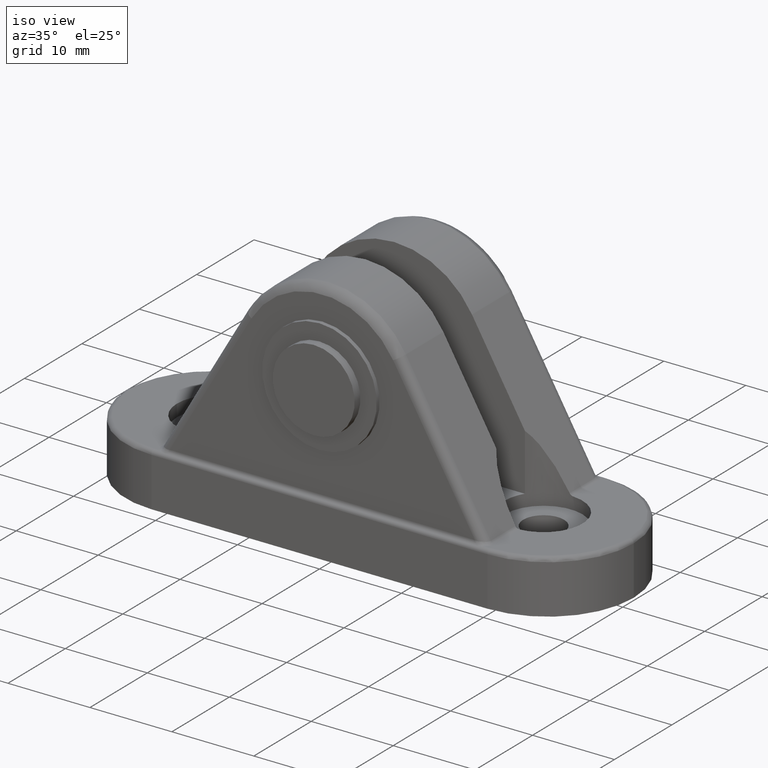
[diagram: clean part render]
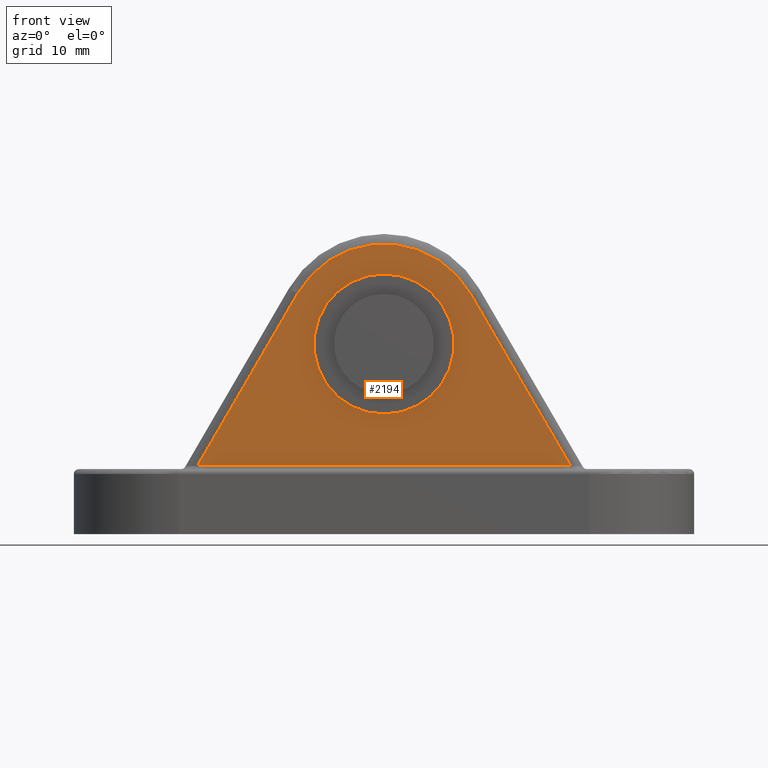
[diagram: tour spotlight — one face highlighted and labeled with its STEP entity id]
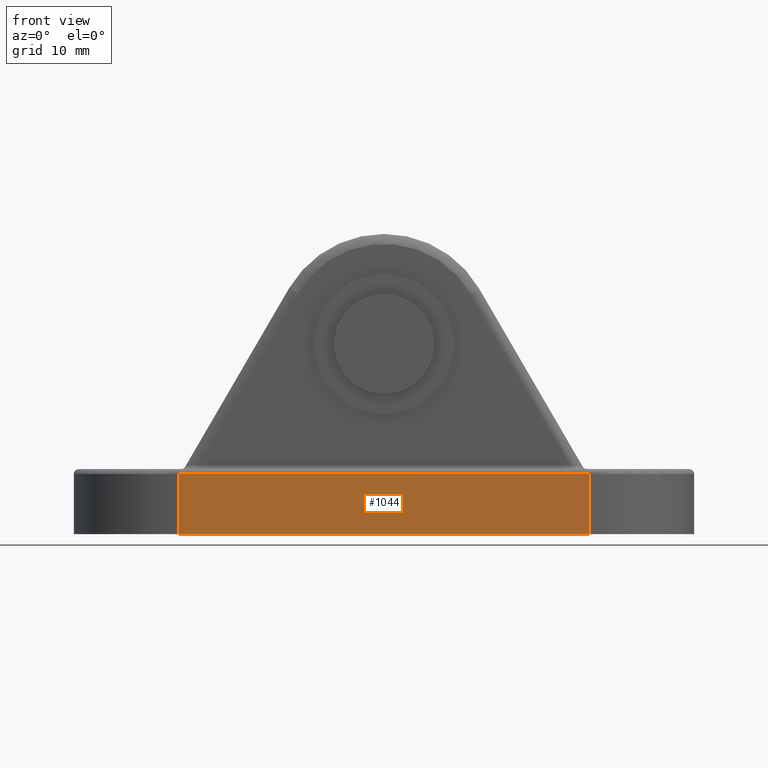
[diagram: tour spotlight — one face highlighted and labeled with its STEP entity id]
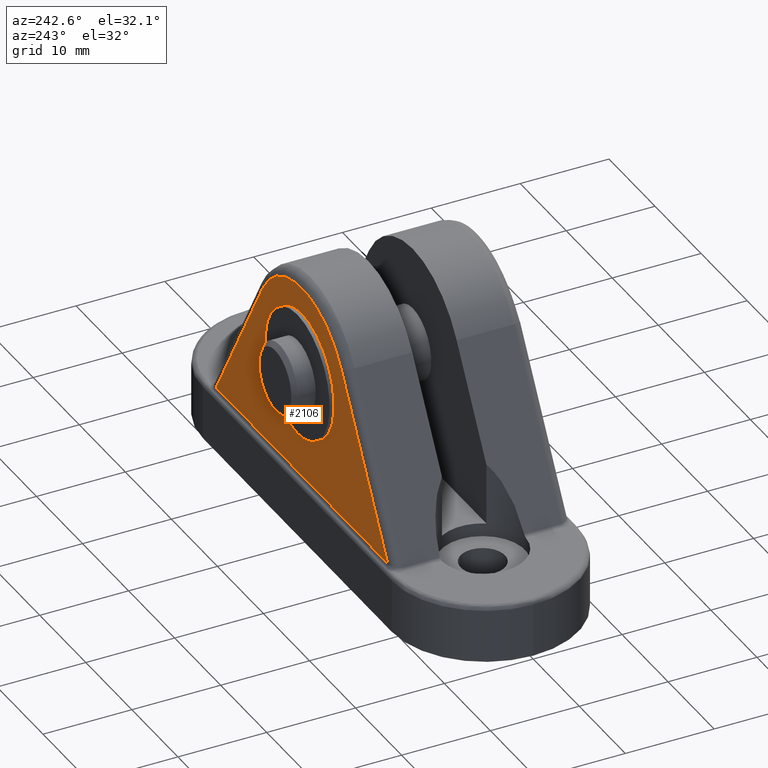
[diagram: tour spotlight — one face highlighted and labeled with its STEP entity id]
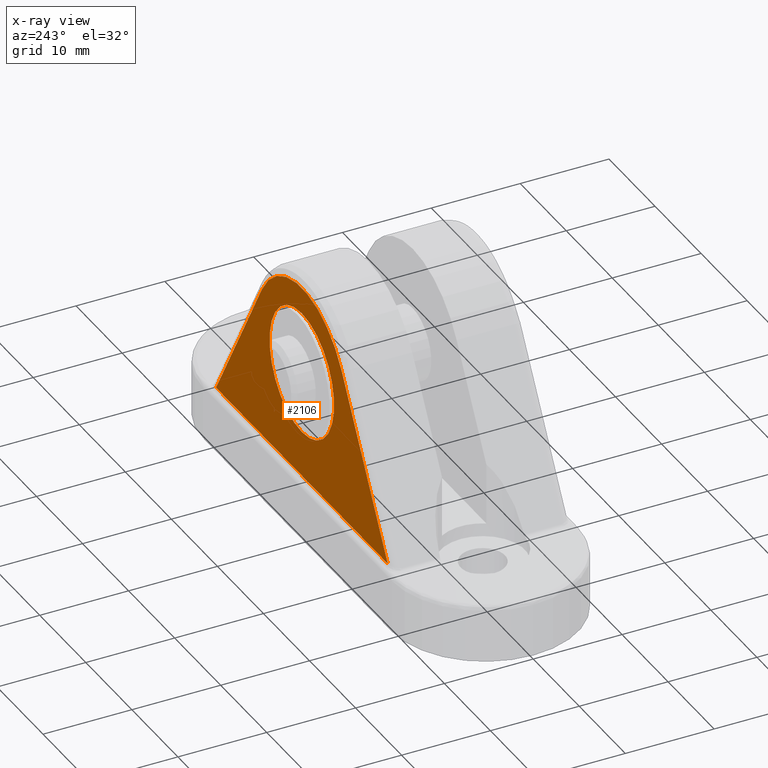
[diagram: x-ray of the same camera — body ghosted, this tour face saturated]
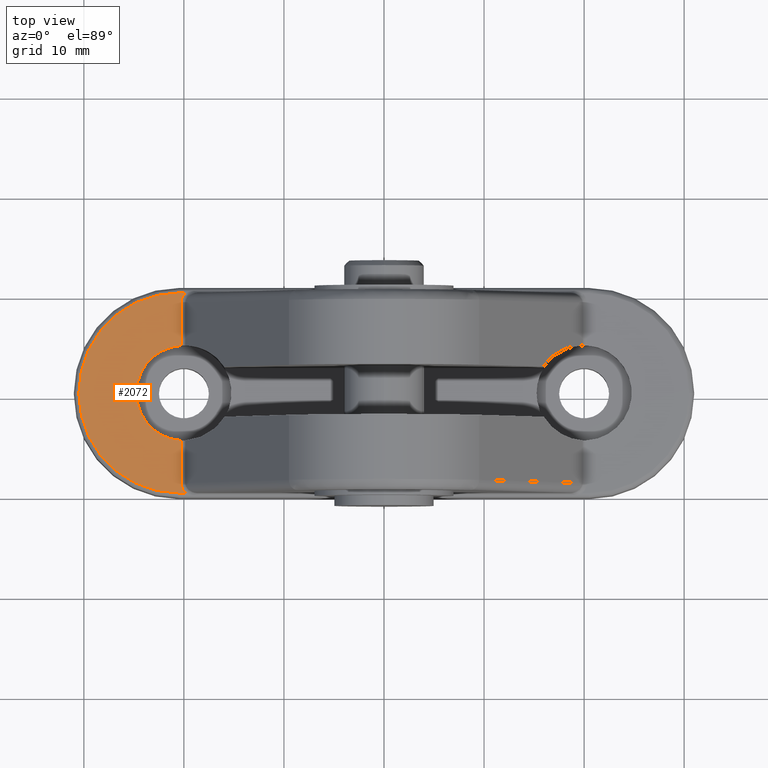
[diagram: tour spotlight — one face highlighted and labeled with its STEP entity id]
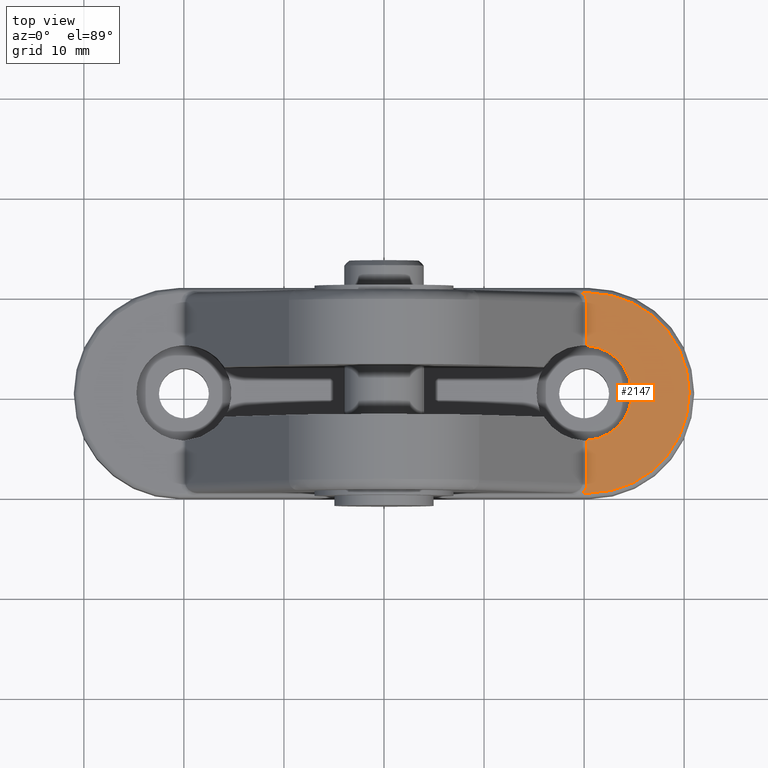
[diagram: tour spotlight — one face highlighted and labeled with its STEP entity id]
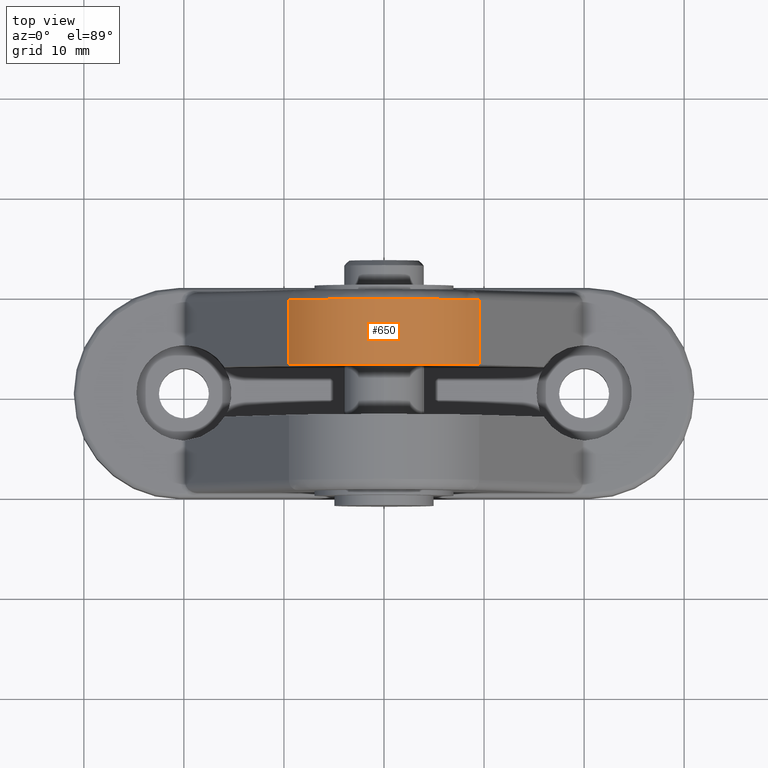
[diagram: tour spotlight — one face highlighted and labeled with its STEP entity id]
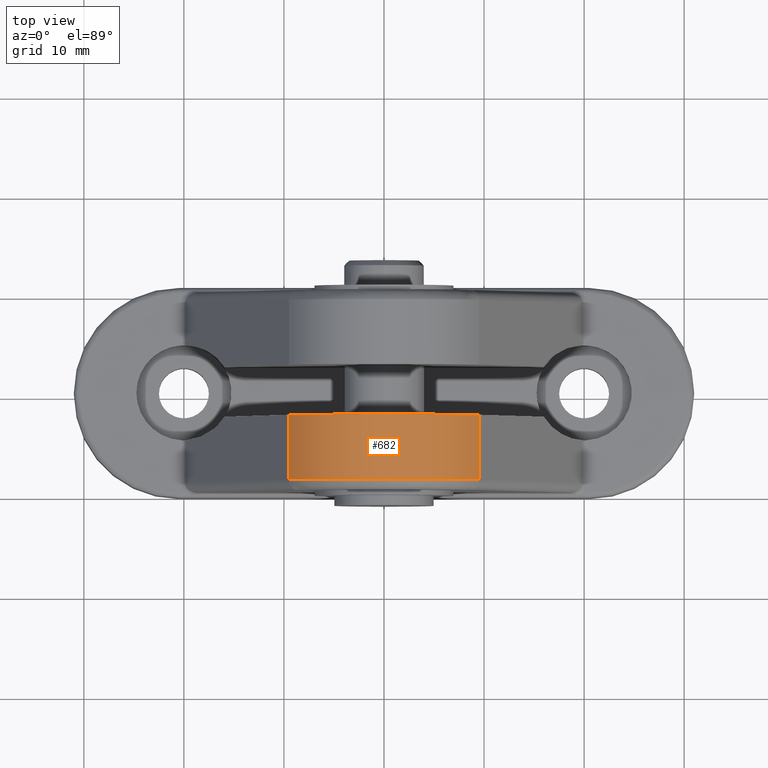
[diagram: tour spotlight — one face highlighted and labeled with its STEP entity id]
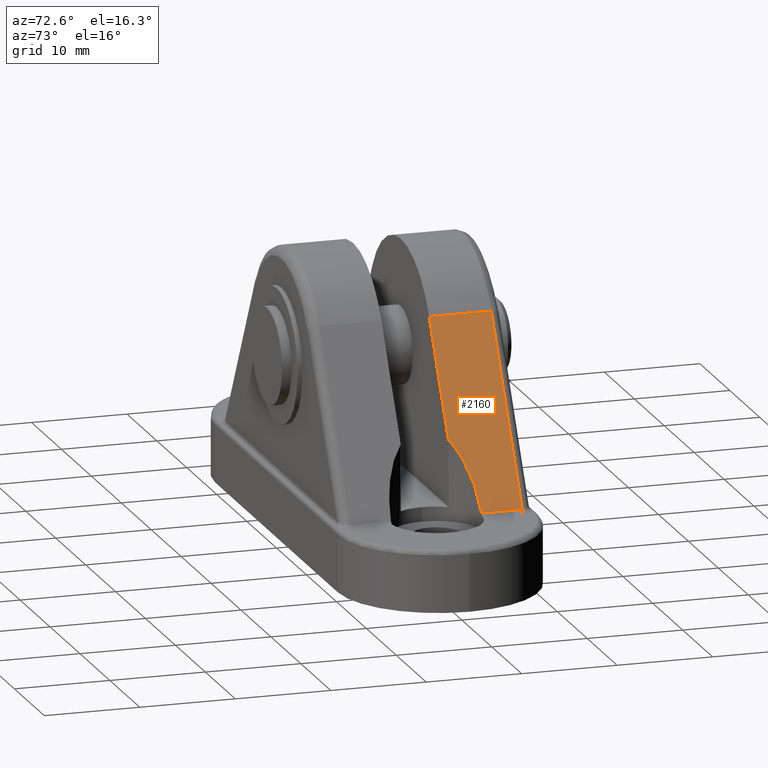
[diagram: tour spotlight — one face highlighted and labeled with its STEP entity id]
A machine part: a face-by-face anatomy tour. The part has 64 B-rep faces; the first image is the clean iso view, then the 8 largest visible faces are spotlighted one at a time (largest first), each with its STEP entity span.

Face 1 — front view, entity #2194. In plain terms, the highlighted planar face has unit normal (0, -1, 0).
Definition (entity closure, byte-faithful):
#374=CARTESIAN_POINT('',(2.131628E-014,0.500000000000000,26.0));
#375=VERTEX_POINT('',#374);
#382=CARTESIAN_POINT('',(-8.185644E-015,0.500000000000000,12.0));
#383=VERTEX_POINT('',#382);
#384=CARTESIAN_POINT('',(7.105427E-015,0.500000000000000,19.0));
#385=DIRECTION('',(0.0,-1.0,6.123234E-017));
#386=DIRECTION('',(2.184439E-015,6.123234E-017,1.0));
#387=AXIS2_PLACEMENT_3D('',#384,#385,#386);
#388=CIRCLE('',#387,7.0);
#389=EDGE_CURVE('',#375,#383,#388,.T.);
#391=CARTESIAN_POINT('',(7.105427E-015,0.500000000000000,19.0));
#392=DIRECTION('',(0.0,-1.0,6.123234E-017));
#393=DIRECTION('',(2.184439E-015,6.123234E-017,1.0));
#394=AXIS2_PLACEMENT_3D('',#391,#392,#393);
#395=CIRCLE('',#394,7.0);
#396=EDGE_CURVE('',#383,#375,#395,.T.);
#762=CARTESIAN_POINT('',(-8.643291246073048,0.500000000000000,24.029265993716876));
#763=VERTEX_POINT('',#762);
#771=CARTESIAN_POINT('',(8.643291246073051,0.500000000000000,24.029265993716884));
#772=VERTEX_POINT('',#771);
#773=CARTESIAN_POINT('',(3.552714E-015,0.500000000000000,19.0));
#774=DIRECTION('',(-3.081488E-033,1.0,-6.123234E-017));
#775=DIRECTION('',(0.864329124607305,3.079537E-017,0.502926599371688));
#776=AXIS2_PLACEMENT_3D('',#773,#774,#775);
#777=CIRCLE('',#776,10.000000000000005);
#778=EDGE_CURVE('',#763,#772,#777,.T.);
#1696=CARTESIAN_POINT('',(-18.630054364826634,0.500000000000000,6.866025403784477));
#1697=VERTEX_POINT('',#1696);
#1707=CARTESIAN_POINT('',(-18.630054364826655,0.500000000000000,6.866025403784490));
#1708=DIRECTION('',(0.502926599371688,5.591008E-017,0.864329124607305));
#1709=VECTOR('',#1708,19.857297528566168);
#1710=LINE('',#1707,#1709);
#1711=EDGE_CURVE('',#1697,#763,#1710,.T.);
#1723=CARTESIAN_POINT('',(18.630054364826695,0.500000000000000,6.866025403784420));
#1724=VERTEX_POINT('',#1723);
#1725=CARTESIAN_POINT('',(18.630054364826695,0.500000000000000,6.866025403784420));
#1726=DIRECTION('',(-0.502926599371688,5.591008E-017,0.864329124607305));
#1727=VECTOR('',#1726,19.857297528566249);
#1728=LINE('',#1725,#1727);
#1729=EDGE_CURVE('',#1724,#772,#1728,.T.);
#2174=CARTESIAN_POINT('',(31.000000000000014,0.500000000000000,6.499999999999972));
#2175=DIRECTION('',(0.0,-1.0,0.0));
#2176=DIRECTION('',(0.0,0.0,1.0));
#2177=AXIS2_PLACEMENT_3D('',#2174,#2175,#2176);
#2178=PLANE('',#2177);
#2179=ORIENTED_EDGE('',*,*,#778,.F.);
#2180=ORIENTED_EDGE('',*,*,#1711,.F.);
#2181=CARTESIAN_POINT('',(18.630054364826695,0.500000000000000,6.866025403784420));
#2182=DIRECTION('',(-1.0,0.0,0.0));
#2183=VECTOR('',#2182,37.260108729653325);
#2184=LINE('',#2181,#2183);
#2185=EDGE_CURVE('',#1724,#1697,#2184,.T.);
#2186=ORIENTED_EDGE('',*,*,#2185,.F.);
#2187=ORIENTED_EDGE('',*,*,#1729,.T.);
#2188=EDGE_LOOP('',(#2179,#2180,#2186,#2187));
#2189=FACE_OUTER_BOUND('',#2188,.T.);
#2190=ORIENTED_EDGE('',*,*,#396,.F.);
#2191=ORIENTED_EDGE('',*,*,#389,.F.);
#2192=EDGE_LOOP('',(#2190,#2191));
#2193=FACE_BOUND('',#2192,.T.);
#2194=ADVANCED_FACE('',(#2189,#2193),#2178,.T.);

Face 2 — front view, entity #1044. In plain terms, the highlighted planar face has unit normal (0, -1, 0).
Definition (entity closure, byte-faithful):
#84=CARTESIAN_POINT('',(-20.500000000000000,0.0,0.0));
#85=VERTEX_POINT('',#84);
#121=CARTESIAN_POINT('',(20.500000000000000,0.0,0.0));
#122=VERTEX_POINT('',#121);
#130=CARTESIAN_POINT('',(-20.500000000000000,0.0,0.0));
#131=DIRECTION('',(1.0,0.0,0.0));
#132=VECTOR('',#131,41.0);
#133=LINE('',#130,#132);
#134=EDGE_CURVE('',#85,#122,#133,.T.);
#902=CARTESIAN_POINT('',(-20.500000000000000,0.0,6.000000000000043));
#903=VERTEX_POINT('',#902);
#904=CARTESIAN_POINT('',(-20.500000000000000,-3.061617E-017,6.000000000000043));
#905=DIRECTION('',(0.0,0.0,-1.0));
#906=VECTOR('',#905,6.000000000000043);
#907=LINE('',#904,#906);
#908=EDGE_CURVE('',#903,#85,#907,.T.);
#1010=CARTESIAN_POINT('',(20.500000000000014,0.0,5.999999999999986));
#1011=VERTEX_POINT('',#1010);
#1019=CARTESIAN_POINT('',(20.500000000000000,0.0,0.0));
#1020=DIRECTION('',(0.0,0.0,1.0));
#1021=VECTOR('',#1020,5.999999999999986);
#1022=LINE('',#1019,#1021);
#1023=EDGE_CURVE('',#122,#1011,#1022,.T.);
#1028=CARTESIAN_POINT('',(-37.200001918771463,0.0,-3.000001865087839));
#1029=DIRECTION('',(0.0,-1.0,0.0));
#1030=DIRECTION('',(1.0,0.0,0.0));
#1031=AXIS2_PLACEMENT_3D('',#1028,#1029,#1030);
#1032=PLANE('',#1031);
#1033=ORIENTED_EDGE('',*,*,#134,.T.);
#1034=ORIENTED_EDGE('',*,*,#1023,.T.);
#1035=CARTESIAN_POINT('',(20.500000000000014,0.0,5.999999999999986));
#1036=DIRECTION('',(-1.0,0.0,0.0));
#1037=VECTOR('',#1036,41.000000000000014);
#1038=LINE('',#1035,#1037);
#1039=EDGE_CURVE('',#1011,#903,#1038,.T.);
#1040=ORIENTED_EDGE('',*,*,#1039,.T.);
#1041=ORIENTED_EDGE('',*,*,#908,.T.);
#1042=EDGE_LOOP('',(#1033,#1034,#1040,#1041));
#1043=FACE_OUTER_BOUND('',#1042,.T.);
#1044=ADVANCED_FACE('',(#1043),#1032,.T.);

Face 3 — auxiliary view, entity #2106. An x-ray twin of the same camera follows (body ghosted, this face saturated) — the face is partly hidden behind the body. In plain terms, the highlighted planar face has unit normal (0, 1, 0).
Definition (entity closure, byte-faithful):
#474=CARTESIAN_POINT('',(-7.105427E-015,20.499999999999996,12.0));
#475=VERTEX_POINT('',#474);
#482=CARTESIAN_POINT('',(2.239650E-014,20.500000000000000,26.0));
#483=VERTEX_POINT('',#482);
#484=CARTESIAN_POINT('',(7.105427E-015,20.500000000000000,19.0));
#485=DIRECTION('',(0.0,1.0,-6.123234E-017));
#486=DIRECTION('',(-2.184439E-015,-6.123234E-017,-1.0));
#487=AXIS2_PLACEMENT_3D('',#484,#485,#486);
#488=CIRCLE('',#487,7.0);
#489=EDGE_CURVE('',#475,#483,#488,.T.);
#491=CARTESIAN_POINT('',(7.105427E-015,20.500000000000000,19.0));
#492=DIRECTION('',(0.0,1.0,-6.123234E-017));
#493=DIRECTION('',(-2.184439E-015,-6.123234E-017,-1.0));
#494=AXIS2_PLACEMENT_3D('',#491,#492,#493);
#495=CIRCLE('',#494,7.0);
#496=EDGE_CURVE('',#483,#475,#495,.T.);
#868=CARTESIAN_POINT('',(8.643291246073051,20.500000000000000,24.029265993716884));
#869=VERTEX_POINT('',#868);
#877=CARTESIAN_POINT('',(-8.643291246073055,20.500000000000000,24.029265993716876));
#878=VERTEX_POINT('',#877);
#879=CARTESIAN_POINT('',(-6.317050E-032,20.500000000000000,19.0));
#880=DIRECTION('',(3.081488E-033,-1.0,6.123234E-017));
#881=DIRECTION('',(0.864329124607305,3.079537E-017,0.502926599371688));
#882=AXIS2_PLACEMENT_3D('',#879,#880,#881);
#883=CIRCLE('',#882,10.000000000000005);
#884=EDGE_CURVE('',#869,#878,#883,.T.);
#1519=CARTESIAN_POINT('',(-18.630054364826655,20.499999999999996,6.866025403784477));
#1520=VERTEX_POINT('',#1519);
#1521=CARTESIAN_POINT('',(-18.630054364826663,20.499999999999996,6.866025403784481));
#1522=DIRECTION('',(0.502926599371688,0.0,0.864329124607305));
#1523=VECTOR('',#1522,19.857297528566178);
#1524=LINE('',#1521,#1523);
#1525=EDGE_CURVE('',#1520,#878,#1524,.T.);
#1590=CARTESIAN_POINT('',(18.630054364826698,20.499999999999996,6.866025403784434));
#1591=VERTEX_POINT('',#1590);
#1602=CARTESIAN_POINT('',(18.630054364826687,20.499999999999996,6.866025403784429));
#1603=DIRECTION('',(-0.502926599371688,0.0,0.864329124607305));
#1604=VECTOR('',#1603,19.857297528566242);
#1605=LINE('',#1602,#1604);
#1606=EDGE_CURVE('',#1591,#869,#1605,.T.);
#2086=CARTESIAN_POINT('',(31.000000000000096,20.500000000000000,43.499999999999879));
#2087=DIRECTION('',(0.0,1.0,0.0));
#2088=DIRECTION('',(0.0,0.0,-1.0));
#2089=AXIS2_PLACEMENT_3D('',#2086,#2087,#2088);
#2090=PLANE('',#2089);
#2091=ORIENTED_EDGE('',*,*,#1606,.F.);
#2092=CARTESIAN_POINT('',(18.630054364826698,20.499999999999996,6.866025403784434));
#2093=DIRECTION('',(-1.0,0.0,0.0));
#2094=VECTOR('',#2093,37.260108729653354);
#2095=LINE('',#2092,#2094);
#2096=EDGE_CURVE('',#1591,#1520,#2095,.T.);
#2097=ORIENTED_EDGE('',*,*,#2096,.T.);
#2098=ORIENTED_EDGE('',*,*,#1525,.T.);
#2099=ORIENTED_EDGE('',*,*,#884,.F.);
#2100=EDGE_LOOP('',(#2091,#2097,#2098,#2099));
#2101=FACE_OUTER_BOUND('',#2100,.T.);
#2102=ORIENTED_EDGE('',*,*,#496,.F.);
#2103=ORIENTED_EDGE('',*,*,#489,.F.);
#2104=EDGE_LOOP('',(#2102,#2103));
#2105=FACE_BOUND('',#2104,.T.);
#2106=ADVANCED_FACE('',(#2101,#2105),#2090,.T.);

Face 4 — top view, entity #2072. In plain terms, the highlighted planar face has unit normal (0, 0, 1).
Definition (entity closure, byte-faithful):
#1330=CARTESIAN_POINT('',(-30.500000000000000,10.500000000000000,6.500000000000057));
#1331=VERTEX_POINT('',#1330);
#1339=CARTESIAN_POINT('',(-20.500000000000000,20.500000000000000,6.500000000000043));
#1340=VERTEX_POINT('',#1339);
#1341=CARTESIAN_POINT('',(-20.500000000000000,10.500000000000000,6.500000000000043));
#1342=DIRECTION('',(1.336409E-015,6.123234E-017,1.0));
#1343=DIRECTION('',(0.0,1.0,-6.123234E-017));
#1344=AXIS2_PLACEMENT_3D('',#1341,#1342,#1343);
#1345=CIRCLE('',#1344,10.0);
#1346=EDGE_CURVE('',#1340,#1331,#1345,.T.);
#1436=CARTESIAN_POINT('',(-20.500000000000000,0.500000000000000,6.500000000000043));
#1437=VERTEX_POINT('',#1436);
#1445=CARTESIAN_POINT('',(-20.500000000000000,10.500000000000000,6.500000000000043));
#1446=DIRECTION('',(-1.336409E-015,-6.123234E-017,-1.0));
#1447=DIRECTION('',(0.0,-1.0,6.123234E-017));
#1448=AXIS2_PLACEMENT_3D('',#1445,#1446,#1447);
#1449=CIRCLE('',#1448,10.0);
#1450=EDGE_CURVE('',#1437,#1331,#1449,.T.);
#1464=CARTESIAN_POINT('',(-19.845626732760415,20.500000000000000,6.500000000000043));
#1465=VERTEX_POINT('',#1464);
#1466=CARTESIAN_POINT('',(-20.500000000000000,20.500000000000000,6.500000000000043));
#1467=DIRECTION('',(1.0,0.0,0.0));
#1468=VECTOR('',#1467,0.654373267239585);
#1469=LINE('',#1466,#1468);
#1470=EDGE_CURVE('',#1340,#1465,#1469,.T.);
#1646=CARTESIAN_POINT('',(-19.845626732760408,0.500000000000004,6.500000000000043));
#1647=VERTEX_POINT('',#1646);
#1657=CARTESIAN_POINT('',(-19.845626732760408,0.500000000000000,6.500000000000042));
#1658=DIRECTION('',(-1.0,0.0,0.0));
#1659=VECTOR('',#1658,0.654373267239592);
#1660=LINE('',#1657,#1659);
#1661=EDGE_CURVE('',#1647,#1437,#1660,.T.);
#1774=CARTESIAN_POINT('',(-24.750000000000000,10.499999999999988,6.500000000000057));
#1775=VERTEX_POINT('',#1774);
#1782=CARTESIAN_POINT('',(-20.287548681674998,5.758711593283206,6.500000000000043));
#1783=VERTEX_POINT('',#1782);
#1784=CARTESIAN_POINT('',(-20.0,10.499999999999988,6.500000000000057));
#1785=DIRECTION('',(1.336409E-015,6.123234E-017,1.0));
#1786=DIRECTION('',(-1.0,8.183146E-032,1.336409E-015));
#1787=AXIS2_PLACEMENT_3D('',#1784,#1785,#1786);
#1788=CIRCLE('',#1787,4.750000000000000);
#1789=EDGE_CURVE('',#1775,#1783,#1788,.T.);
#1821=CARTESIAN_POINT('',(-20.287548681674998,15.241288406716770,6.500000000000043));
#1822=VERTEX_POINT('',#1821);
#1832=CARTESIAN_POINT('',(-20.0,10.499999999999988,6.500000000000057));
#1833=DIRECTION('',(1.336409E-015,6.123234E-017,1.0));
#1834=DIRECTION('',(-1.0,8.183146E-032,1.336409E-015));
#1835=AXIS2_PLACEMENT_3D('',#1832,#1833,#1834);
#1836=CIRCLE('',#1835,4.750000000000000);
#1837=EDGE_CURVE('',#1822,#1775,#1836,.T.);
#1848=CARTESIAN_POINT('',(-20.287548681675005,19.499999999999996,6.500000000000043));
#1849=VERTEX_POINT('',#1848);
#1857=CARTESIAN_POINT('',(-20.287548681674998,19.499999999999996,6.500000000000043));
#1858=DIRECTION('',(0.0,-1.0,0.0));
#1859=VECTOR('',#1858,4.258711593283227);
#1860=LINE('',#1857,#1859);
#1861=EDGE_CURVE('',#1849,#1822,#1860,.T.);
#1983=CARTESIAN_POINT('',(-20.287548681675005,1.500000000000000,6.500000000000043));
#1984=VERTEX_POINT('',#1983);
#1985=CARTESIAN_POINT('',(-20.287548681674998,5.758711593283206,6.500000000000043));
#1986=DIRECTION('',(0.0,-1.0,0.0));
#1987=VECTOR('',#1986,4.258711593283206);
#1988=LINE('',#1985,#1987);
#1989=EDGE_CURVE('',#1783,#1984,#1988,.T.);
#2031=CARTESIAN_POINT('',(31.000017670767889,21.000017670767875,6.499999999999972));
#2032=DIRECTION('',(0.0,0.0,1.0));
#2033=DIRECTION('',(-1.0,0.0,0.0));
#2034=AXIS2_PLACEMENT_3D('',#2031,#2032,#2033);
#2035=PLANE('',#2034);
#2036=ORIENTED_EDGE('',*,*,#1346,.T.);
#2037=ORIENTED_EDGE('',*,*,#1450,.F.);
#2038=ORIENTED_EDGE('',*,*,#1661,.F.);
#2039=CARTESIAN_POINT('',(-20.287548681675005,1.500000000000000,6.500000000000043));
#2040=CARTESIAN_POINT('',(-20.287548681675005,1.447876595983789,6.500000000000043));
#2041=CARTESIAN_POINT('',(-20.281256378258270,1.343629906590522,6.500000000000057));
#2042=CARTESIAN_POINT('',(-20.253043491302066,1.188957574706969,6.500000000000043));
#2043=CARTESIAN_POINT('',(-20.206362496084381,1.037662430134187,6.500000000000043));
#2044=CARTESIAN_POINT('',(-20.141720232465069,0.891387134738501,6.500000000000043));
#2045=CARTESIAN_POINT('',(-20.059818564309857,0.751719896273503,6.500000000000028));
#2046=CARTESIAN_POINT('',(-19.961546718858784,0.620177133573165,6.500000000000043));
#2047=CARTESIAN_POINT('',(-19.885830093981859,0.538850491532980,6.500000000000043));
#2048=CARTESIAN_POINT('',(-19.845626732760408,0.500000000000000,6.500000000000043));
#2049=B_SPLINE_CURVE_WITH_KNOTS('',3,(#2039,#2040,#2041,#2042,#2043,#2044,#2045,#2046,#2047,#2048),.UNSPECIFIED.,.F.,.U.,(4,1,1,1,1,1,1,4),(-4.836507031854392,-4.676018236618296,-4.515529441382200,-4.355040646146104,-4.194551850910007,-4.034063055673911,-3.873574260437814,-3.713085465201718),.UNSPECIFIED.);
#2050=EDGE_CURVE('',#1984,#1647,#2049,.T.);
#2051=ORIENTED_EDGE('',*,*,#2050,.F.);
#2052=ORIENTED_EDGE('',*,*,#1989,.F.);
#2053=ORIENTED_EDGE('',*,*,#1789,.F.);
#2054=ORIENTED_EDGE('',*,*,#1837,.F.);
#2055=ORIENTED_EDGE('',*,*,#1861,.F.);
#2056=CARTESIAN_POINT('',(-20.287548681675005,19.499999999999996,6.500000000000043));
#2057=CARTESIAN_POINT('',(-20.287548681675005,19.552123404016211,6.500000000000043));
#2058=CARTESIAN_POINT('',(-20.281256378258277,19.656370093409489,6.500000000000057));
#2059=CARTESIAN_POINT('',(-20.253043491302080,19.811042425293028,6.500000000000014));
#2060=CARTESIAN_POINT('',(-20.206362496084367,19.962337569865809,6.500000000000057));
#2061=CARTESIAN_POINT('',(-20.141720232465069,20.108612865261499,6.500000000000043));
#2062=CARTESIAN_POINT('',(-20.059818564309857,20.248280103726490,6.500000000000028));
#2063=CARTESIAN_POINT('',(-19.961546718858806,20.379822866426839,6.500000000000043));
#2064=CARTESIAN_POINT('',(-19.885830093981859,20.461149508467020,6.500000000000043));
#2065=CARTESIAN_POINT('',(-19.845626732760408,20.500000000000000,6.500000000000043));
#2066=B_SPLINE_CURVE_WITH_KNOTS('',3,(#2056,#2057,#2058,#2059,#2060,#2061,#2062,#2063,#2064,#2065),.UNSPECIFIED.,.F.,.U.,(4,1,1,1,1,1,1,4),(-4.836507031854445,-4.676018236618347,-4.515529441382249,-4.355040646146151,-4.194551850910053,-4.034063055673955,-3.873574260437856,-3.713085465201758),.UNSPECIFIED.);
#2067=EDGE_CURVE('',#1849,#1465,#2066,.T.);
#2068=ORIENTED_EDGE('',*,*,#2067,.T.);
#2069=ORIENTED_EDGE('',*,*,#1470,.F.);
#2070=EDGE_LOOP('',(#2036,#2037,#2038,#2051,#2052,#2053,#2054,#2055,#2068,#2069));
#2071=FACE_OUTER_BOUND('',#2070,.T.);
#2072=ADVANCED_FACE('',(#2071),#2035,.T.);

Face 5 — top view, entity #2147. In plain terms, the highlighted planar face has unit normal (0, 0, 1).
Definition (entity closure, byte-faithful):
#1124=CARTESIAN_POINT('',(30.500000000000014,10.500000000000000,6.499999999999972));
#1125=VERTEX_POINT('',#1124);
#1133=CARTESIAN_POINT('',(20.500000000000014,0.500000000000000,6.499999999999986));
#1134=VERTEX_POINT('',#1133);
#1135=CARTESIAN_POINT('',(20.500000000000014,10.500000000000000,6.499999999999986));
#1136=DIRECTION('',(1.336409E-015,6.123234E-017,1.0));
#1137=DIRECTION('',(0.0,-1.0,6.123234E-017));
#1138=AXIS2_PLACEMENT_3D('',#1135,#1136,#1137);
#1139=CIRCLE('',#1138,10.0);
#1140=EDGE_CURVE('',#1134,#1125,#1139,.T.);
#1231=CARTESIAN_POINT('',(20.500000000000014,20.500000000000000,6.499999999999986));
#1232=VERTEX_POINT('',#1231);
#1240=CARTESIAN_POINT('',(20.500000000000014,10.500000000000000,6.499999999999986));
#1241=DIRECTION('',(-1.336409E-015,-6.123234E-017,-1.0));
#1242=DIRECTION('',(0.0,1.0,-6.123234E-017));
#1243=AXIS2_PLACEMENT_3D('',#1240,#1241,#1242);
#1244=CIRCLE('',#1243,10.0);
#1245=EDGE_CURVE('',#1232,#1125,#1244,.T.);
#1491=CARTESIAN_POINT('',(19.845626732760440,20.500000000000000,6.499999999999986));
#1492=VERTEX_POINT('',#1491);
#1503=CARTESIAN_POINT('',(19.845626732760437,20.500000000000000,6.499999999999987));
#1504=DIRECTION('',(1.0,0.0,0.0));
#1505=VECTOR('',#1504,0.654373267239578);
#1506=LINE('',#1503,#1505);
#1507=EDGE_CURVE('',#1492,#1232,#1506,.T.);
#1618=CARTESIAN_POINT('',(19.845626732760444,0.500000000000000,6.499999999999986));
#1619=VERTEX_POINT('',#1618);
#1620=CARTESIAN_POINT('',(20.500000000000014,0.500000000000000,6.499999999999986));
#1621=DIRECTION('',(-1.0,0.0,0.0));
#1622=VECTOR('',#1621,0.654373267239571);
#1623=LINE('',#1620,#1622);
#1624=EDGE_CURVE('',#1134,#1619,#1623,.T.);
#1897=CARTESIAN_POINT('',(20.287548681675034,5.758711593283209,6.499999999999986));
#1898=VERTEX_POINT('',#1897);
#1908=CARTESIAN_POINT('',(20.287548681675034,15.241288406716771,6.499999999999986));
#1909=VERTEX_POINT('',#1908);
#1910=CARTESIAN_POINT('',(20.0,10.499999999999991,6.499999999999986));
#1911=DIRECTION('',(1.336409E-015,6.123234E-017,1.0));
#1912=DIRECTION('',(-1.0,8.183146E-032,1.336409E-015));
#1913=AXIS2_PLACEMENT_3D('',#1910,#1911,#1912);
#1914=CIRCLE('',#1913,4.750000000000000);
#1915=EDGE_CURVE('',#1898,#1909,#1914,.T.);
#1953=CARTESIAN_POINT('',(20.287548681675041,19.500000000000000,6.499999999999986));
#1954=VERTEX_POINT('',#1953);
#1955=CARTESIAN_POINT('',(20.287548681675041,19.500000000000000,6.499999999999986));
#1956=DIRECTION('',(0.0,-1.0,0.0));
#1957=VECTOR('',#1956,4.258711593283227);
#1958=LINE('',#1955,#1957);
#1959=EDGE_CURVE('',#1954,#1909,#1958,.T.);
#2012=CARTESIAN_POINT('',(20.287548681675041,1.500000000000000,6.499999999999986));
#2013=VERTEX_POINT('',#2012);
#2021=CARTESIAN_POINT('',(20.287548681675034,5.758711593283209,6.499999999999986));
#2022=DIRECTION('',(0.0,-1.0,0.0));
#2023=VECTOR('',#2022,4.258711593283209);
#2024=LINE('',#2021,#2023);
#2025=EDGE_CURVE('',#1898,#2013,#2024,.T.);
#2107=CARTESIAN_POINT('',(31.000017670767889,21.000017670767875,6.499999999999972));
#2108=DIRECTION('',(0.0,0.0,1.0));
#2109=DIRECTION('',(-1.0,0.0,0.0));
#2110=AXIS2_PLACEMENT_3D('',#2107,#2108,#2109);
#2111=PLANE('',#2110);
#2112=ORIENTED_EDGE('',*,*,#1140,.T.);
#2113=ORIENTED_EDGE('',*,*,#1245,.F.);
#2114=ORIENTED_EDGE('',*,*,#1507,.F.);
#2115=CARTESIAN_POINT('',(20.287548681675037,19.500000000000000,6.499999999999986));
#2116=CARTESIAN_POINT('',(20.287548681675037,19.552123404016214,6.499999999999986));
#2117=CARTESIAN_POINT('',(20.281256378258320,19.656370093409489,6.499999999999986));
#2118=CARTESIAN_POINT('',(20.253043491302090,19.811042425293031,6.499999999999972));
#2119=CARTESIAN_POINT('',(20.206362496084417,19.962337569865809,6.499999999999986));
#2120=CARTESIAN_POINT('',(20.141720232465094,20.108612865261499,6.499999999999986));
#2121=CARTESIAN_POINT('',(20.059818564309879,20.248280103726493,6.499999999999972));
#2122=CARTESIAN_POINT('',(19.961546718858820,20.379822866426839,6.499999999999986));
#2123=CARTESIAN_POINT('',(19.885830093981891,20.461149508467024,6.499999999999986));
#2124=CARTESIAN_POINT('',(19.845626732760440,20.500000000000000,6.499999999999986));
#2125=B_SPLINE_CURVE_WITH_KNOTS('',3,(#2115,#2116,#2117,#2118,#2119,#2120,#2121,#2122,#2123,#2124),.UNSPECIFIED.,.F.,.U.,(4,1,1,1,1,1,1,4),(-4.836507031854457,-4.676018236618360,-4.515529441382262,-4.355040646146165,-4.194551850910067,-4.034063055673970,-3.873574260437873,-3.713085465201775),.UNSPECIFIED.);
#2126=EDGE_CURVE('',#1954,#1492,#2125,.T.);
#2127=ORIENTED_EDGE('',*,*,#2126,.F.);
#2128=ORIENTED_EDGE('',*,*,#1959,.T.);
#2129=ORIENTED_EDGE('',*,*,#1915,.F.);
#2130=ORIENTED_EDGE('',*,*,#2025,.T.);
#2131=CARTESIAN_POINT('',(20.287548681675037,1.500000000000000,6.499999999999986));
#2132=CARTESIAN_POINT('',(20.287548681675037,1.447876595983789,6.499999999999986));
#2133=CARTESIAN_POINT('',(20.281256378258320,1.343629906590504,6.499999999999986));
#2134=CARTESIAN_POINT('',(20.253043491302087,1.188957574706965,6.499999999999986));
#2135=CARTESIAN_POINT('',(20.206362496084417,1.037662430134187,6.499999999999972));
#2136=CARTESIAN_POINT('',(20.141720232465094,0.891387134738498,6.500000000000000));
#2137=CARTESIAN_POINT('',(20.059818564309882,0.751719896273503,6.499999999999986));
#2138=CARTESIAN_POINT('',(19.961546718858820,0.620177133573161,6.499999999999986));
#2139=CARTESIAN_POINT('',(19.885830093981895,0.538850491532980,6.499999999999986));
#2140=CARTESIAN_POINT('',(19.845626732760444,0.500000000000000,6.499999999999986));
#2141=B_SPLINE_CURVE_WITH_KNOTS('',3,(#2131,#2132,#2133,#2134,#2135,#2136,#2137,#2138,#2139,#2140),.UNSPECIFIED.,.F.,.U.,(4,1,1,1,1,1,1,4),(-4.836507031854486,-4.676018236618389,-4.515529441382290,-4.355040646146192,-4.194551850910094,-4.034063055673997,-3.873574260437898,-3.713085465201800),.UNSPECIFIED.);
#2142=EDGE_CURVE('',#2013,#1619,#2141,.T.);
#2143=ORIENTED_EDGE('',*,*,#2142,.T.);
#2144=ORIENTED_EDGE('',*,*,#1624,.F.);
#2145=EDGE_LOOP('',(#2112,#2113,#2114,#2127,#2128,#2129,#2130,#2143,#2144));
#2146=FACE_OUTER_BOUND('',#2145,.T.);
#2147=ADVANCED_FACE('',(#2146),#2111,.T.);

Face 6 — top view, entity #650. In plain terms, the highlighted cylindrical surface (partial cylindrical patch) has radius 11 mm, axis along (0, -1, 0).
Definition (entity closure, byte-faithful):
#554=CARTESIAN_POINT('',(9.507620370680357,12.999999999999996,24.532192593088567));
#555=VERTEX_POINT('',#554);
#562=CARTESIAN_POINT('',(-9.507620370680357,12.999999999999996,24.532192593088567));
#563=VERTEX_POINT('',#562);
#564=CARTESIAN_POINT('',(-8.011869E-032,12.999999999999996,19.0));
#565=DIRECTION('',(6.162976E-033,-1.0,6.123234E-017));
#566=DIRECTION('',(0.864329124607305,3.079537E-017,0.502926599371688));
#567=AXIS2_PLACEMENT_3D('',#564,#565,#566);
#568=CIRCLE('',#567,11.000000000000004);
#569=EDGE_CURVE('',#555,#563,#568,.T.);
#619=CARTESIAN_POINT('',(0.0,21.0,19.0));
#620=DIRECTION('',(6.162976E-033,-1.0,6.123234E-017));
#621=DIRECTION('',(0.864329124607305,3.079537E-017,0.502926599371688));
#622=AXIS2_PLACEMENT_3D('',#619,#620,#621);
#623=CYLINDRICAL_SURFACE('',#622,11.000000000000004);
#624=CARTESIAN_POINT('',(9.507620370680357,19.500000000000000,24.532192593088567));
#625=VERTEX_POINT('',#624);
#626=CARTESIAN_POINT('',(9.507620370680357,19.500000000000000,24.532192593088567));
#627=DIRECTION('',(0.0,-1.0,0.0));
#628=VECTOR('',#627,6.500000000000004);
#629=LINE('',#626,#628);
#630=EDGE_CURVE('',#625,#555,#629,.T.);
#631=ORIENTED_EDGE('',*,*,#630,.F.);
#632=CARTESIAN_POINT('',(-9.507620370680357,19.500000000000000,24.532192593088567));
#633=VERTEX_POINT('',#632);
#634=CARTESIAN_POINT('',(-1.201780E-031,19.500000000000000,19.0));
#635=DIRECTION('',(6.162976E-033,-1.0,6.123234E-017));
#636=DIRECTION('',(0.864329124607305,3.079537E-017,0.502926599371688));
#637=AXIS2_PLACEMENT_3D('',#634,#635,#636);
#638=CIRCLE('',#637,11.000000000000004);
#639=EDGE_CURVE('',#625,#633,#638,.T.);
#640=ORIENTED_EDGE('',*,*,#639,.T.);
#641=CARTESIAN_POINT('',(-9.507620370680357,19.500000000000000,24.532192593088567));
#642=DIRECTION('',(0.0,-1.0,0.0));
#643=VECTOR('',#642,6.500000000000004);
#644=LINE('',#641,#643);
#645=EDGE_CURVE('',#633,#563,#644,.T.);
#646=ORIENTED_EDGE('',*,*,#645,.T.);
#647=ORIENTED_EDGE('',*,*,#569,.F.);
#648=EDGE_LOOP('',(#631,#640,#646,#647));
#649=FACE_OUTER_BOUND('',#648,.T.);
#650=ADVANCED_FACE('',(#649),#623,.T.);

Face 7 — top view, entity #682. In plain terms, the highlighted cylindrical surface (partial cylindrical patch) has radius 11 mm, axis along (0, -1, 0).
Definition (entity closure, byte-faithful):
#9=CARTESIAN_POINT('',(-9.507620370680357,7.999999999999996,24.532192593088567));
#10=VERTEX_POINT('',#9);
#17=CARTESIAN_POINT('',(9.507620370680357,7.999999999999995,24.532192593088567));
#18=VERTEX_POINT('',#17);
#19=CARTESIAN_POINT('',(-4.930381E-032,7.999999999999996,19.0));
#20=DIRECTION('',(-6.162976E-033,1.0,-6.123234E-017));
#21=DIRECTION('',(0.864329124607305,3.079537E-017,0.502926599371688));
#22=AXIS2_PLACEMENT_3D('',#19,#20,#21);
#23=CIRCLE('',#22,11.000000000000004);
#24=EDGE_CURVE('',#10,#18,#23,.T.);
#651=CARTESIAN_POINT('',(0.0,21.0,19.0));
#652=DIRECTION('',(6.162976E-033,-1.0,6.123234E-017));
#653=DIRECTION('',(0.864329124607305,3.079537E-017,0.502926599371688));
#654=AXIS2_PLACEMENT_3D('',#651,#652,#653);
#655=CYLINDRICAL_SURFACE('',#654,11.000000000000004);
#656=CARTESIAN_POINT('',(-9.507620370680357,1.500000000000000,24.532192593088567));
#657=VERTEX_POINT('',#656);
#658=CARTESIAN_POINT('',(-9.507620370680357,7.999999999999996,24.532192593088567));
#659=DIRECTION('',(0.0,-1.0,0.0));
#660=VECTOR('',#659,6.499999999999996);
#661=LINE('',#658,#660);
#662=EDGE_CURVE('',#10,#657,#661,.T.);
#663=ORIENTED_EDGE('',*,*,#662,.T.);
#664=CARTESIAN_POINT('',(9.507620370680357,1.500000000000000,24.532192593088567));
#665=VERTEX_POINT('',#664);
#666=CARTESIAN_POINT('',(-9.244464E-033,1.500000000000000,19.0));
#667=DIRECTION('',(-6.162976E-033,1.0,-6.123234E-017));
#668=DIRECTION('',(0.864329124607305,3.079537E-017,0.502926599371688));
#669=AXIS2_PLACEMENT_3D('',#666,#667,#668);
#670=CIRCLE('',#669,11.000000000000004);
#671=EDGE_CURVE('',#657,#665,#670,.T.);
#672=ORIENTED_EDGE('',*,*,#671,.T.);
#673=CARTESIAN_POINT('',(9.507620370680357,7.999999999999995,24.532192593088567));
#674=DIRECTION('',(0.0,-1.0,0.0));
#675=VECTOR('',#674,6.499999999999995);
#676=LINE('',#673,#675);
#677=EDGE_CURVE('',#18,#665,#676,.T.);
#678=ORIENTED_EDGE('',*,*,#677,.F.);
#679=ORIENTED_EDGE('',*,*,#24,.F.);
#680=EDGE_LOOP('',(#663,#672,#678,#679));
#681=FACE_OUTER_BOUND('',#680,.T.);
#682=ADVANCED_FACE('',(#681),#655,.T.);

Face 8 — auxiliary view, entity #2160. In plain terms, the highlighted planar face has unit normal (0.8643, 0, 0.5029).
Definition (entity closure, byte-faithful):
#546=CARTESIAN_POINT('',(15.961126394649135,12.999999999999996,13.441203929308394));
#547=VERTEX_POINT('',#546);
#554=CARTESIAN_POINT('',(9.507620370680357,12.999999999999996,24.532192593088567));
#555=VERTEX_POINT('',#554);
#556=CARTESIAN_POINT('',(15.961126394649135,12.999999999999996,13.441203929308395));
#557=DIRECTION('',(-0.502926599371688,1.384328E-016,0.864329124607305));
#558=VECTOR('',#557,12.831904361453976);
#559=LINE('',#556,#558);
#560=EDGE_CURVE('',#547,#555,#559,.T.);
#624=CARTESIAN_POINT('',(9.507620370680357,19.500000000000000,24.532192593088567));
#625=VERTEX_POINT('',#624);
#626=CARTESIAN_POINT('',(9.507620370680357,19.500000000000000,24.532192593088567));
#627=DIRECTION('',(0.0,-1.0,0.0));
#628=VECTOR('',#627,6.500000000000004);
#629=LINE('',#626,#628);
#630=EDGE_CURVE('',#625,#555,#629,.T.);
#1567=CARTESIAN_POINT('',(19.855384119371390,19.500000000000000,6.748536700314133));
#1568=VERTEX_POINT('',#1567);
#1569=CARTESIAN_POINT('',(19.855384119371390,19.500000000000000,6.748536700314134));
#1570=DIRECTION('',(-0.502926599371688,0.0,0.864329124607305));
#1571=VECTOR('',#1570,20.575097363350075);
#1572=LINE('',#1569,#1571);
#1573=EDGE_CURVE('',#1568,#625,#1572,.T.);
#1917=CARTESIAN_POINT('',(19.855384119371383,15.247798041942172,6.748536700314148));
#1918=VERTEX_POINT('',#1917);
#1928=CARTESIAN_POINT('',(20.000000000000004,10.499999999999991,6.500000000000015));
#1929=DIRECTION('',(0.864329124607305,3.079537E-017,0.502926599371688));
#1930=DIRECTION('',(-0.502926599371688,5.292489E-017,0.864329124607305));
#1931=AXIS2_PLACEMENT_3D('',#1928,#1929,#1930);
#1932=ELLIPSE('',#1931,9.444718187374102,4.750000000000000);
#1933=EDGE_CURVE('',#1918,#547,#1932,.T.);
#1946=CARTESIAN_POINT('',(19.855384119371390,19.500000000000000,6.748536700314133));
#1947=DIRECTION('',(0.0,-1.0,0.0));
#1948=VECTOR('',#1947,4.252201958057828);
#1949=LINE('',#1946,#1948);
#1950=EDGE_CURVE('',#1568,#1918,#1949,.T.);
#2148=CARTESIAN_POINT('',(20.0,21.0,6.500000000000014));
#2149=DIRECTION('',(0.864329124607305,3.079537E-017,0.502926599371688));
#2150=DIRECTION('',(-0.502926599371688,5.292489E-017,0.864329124607305));
#2151=AXIS2_PLACEMENT_3D('',#2148,#2149,#2150);
#2152=PLANE('',#2151);
#2153=ORIENTED_EDGE('',*,*,#630,.T.);
#2154=ORIENTED_EDGE('',*,*,#560,.F.);
#2155=ORIENTED_EDGE('',*,*,#1933,.F.);
#2156=ORIENTED_EDGE('',*,*,#1950,.F.);
#2157=ORIENTED_EDGE('',*,*,#1573,.T.);
#2158=EDGE_LOOP('',(#2153,#2154,#2155,#2156,#2157));
#2159=FACE_OUTER_BOUND('',#2158,.T.);
#2160=ADVANCED_FACE('',(#2159),#2152,.T.);